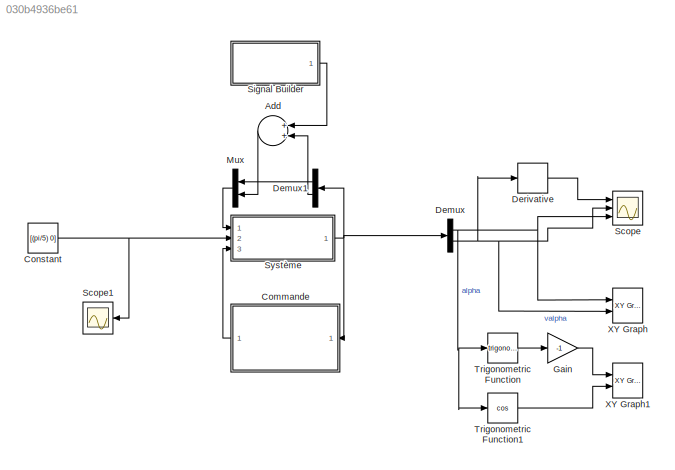
MODEL slx_030b4936be61
KIND model
CONFIG AbsTol = auto
CONFIG FixedStep = 4*pi*sqrt(10/9.81) / 500
CONFIG MaxStep = auto
CONFIG MinStep = auto
CONFIG RelTol = 1e-6
CONFIG SampleTimeConstraint = Unconstrained
CONFIG Solver = FixedStepAuto
CONFIG SolverMode = Auto
CONFIG SolverName = FixedStepAuto
CONFIG StartTime = 0.0
CONFIG StopTime = 4*pi*sqrt(10/9.81)
BLOCK [Sum] Add
  InputSameDT = off
  OutDataTypeStr = Inherit: Inherit via internal rule
  Ports = [2, 1]
  SaturateOnIntegerOverflow = off
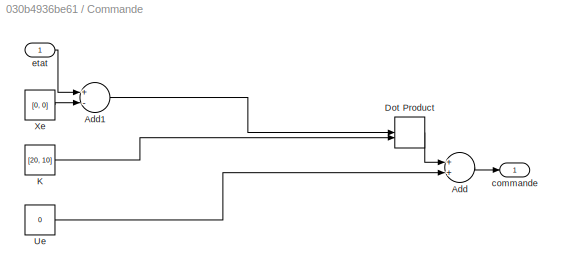
BLOCK [SubSystem] Commande
  Ports = [1, 1]
  RequestExecContextInheritance = off
  Variant = off
BLOCK [Sum] Commande/Add
  InputSameDT = off
  OutDataTypeStr = Inherit: Inherit via internal rule
  Ports = [2, 1]
  SaturateOnIntegerOverflow = off
BLOCK [Sum] Commande/Add1
  InputSameDT = off
  Inputs = +-
  OutDataTypeStr = Inherit: Inherit via internal rule
  Ports = [2, 1]
  SaturateOnIntegerOverflow = off
BLOCK [DotProduct] Commande/Dot Product
  OutDataTypeStr = Inherit: Inherit via internal rule
BLOCK [Constant] Commande/K
  Value = [20, 10]
BLOCK [Constant] Commande/Ue
  Value = 0
BLOCK [Constant] Commande/Xe
  Value = [0, 0]
BLOCK [Outport] Commande/commande
  IconDisplay = Port number
BLOCK [Inport] Commande/etat
  IconDisplay = Port number
BLOCK [Constant] Constant
  Value = [(pi/5) 0]
  VectorParams1D = off
BLOCK [Demux] Demux
  DisplayOption = bar
  Outputs = 2
  Ports = [1, 2]
BLOCK [Demux] Demux1
  DisplayOption = bar
  Outputs = 2
  Ports = [1, 2]
BLOCK [Derivative] Derivative
BLOCK [Gain] Gain
  Gain = -1
  OutDataTypeStr = Inherit: Inherit via internal rule
  ParamDataTypeStr = Inherit: Inherit via internal rule
  SaturateOnIntegerOverflow = off
BLOCK [Mux] Mux
  DisplayOption = bar
  Inputs = 2
  Ports = [2, 1]
BLOCK [Scope] Scope
  NumInputPorts = 3
  Ports = [3]
  ScopeSpecificationString = Simulink.scopes.TimeScopeBlockCfg('CurrentConfiguration', extmgr.ConfigurationSet(extmgr.Configuration('Core','General UI',true),extmgr.Configuration('Core','Source UI',true),extmgr.Configuration('Sources','WiredSimulink',true),extmgr.Configuration('Visuals','Time Domain',true,'SerializedDisplays',{struct('MinYLimReal','-0.51167','MaxYLimReal','0.24967','YLabelReal','','MinYLimMag','0.00000','MaxY...<+2732ch>
BLOCK [Scope] Scope1
  Ports = [1]
  ScopeSpecificationString = Simulink.scopes.TimeScopeBlockCfg('CurrentConfiguration', extmgr.ConfigurationSet(extmgr.Configuration('Core','General UI',true),extmgr.Configuration('Core','Source UI',true),extmgr.Configuration('Sources','WiredSimulink',true,'DataLoggingVariableName','ScopeData1'),extmgr.Configuration('Visuals','Time Domain',true,'SerializedDisplays',{struct('MinYLimReal','-0.07854','MaxYLimReal','0.70686','YLab...<+1411ch>
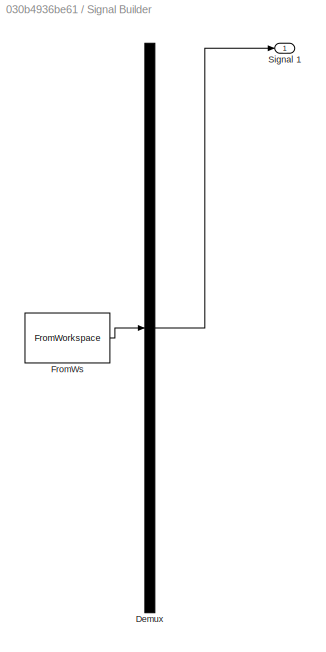
BLOCK [SubSystem] Signal Builder
  ClipboardFcn = sigbuilder_block('clipboard');
  CloseFcn = sigbuilder_block('close');
  ContinueFcn = sigbuilder_block('continue');
  CopyFcn = sigbuilder_block('copy');
  DeleteFcn = sigbuilder_block('delete');
  LoadFcn = sigbuilder_block('load',[437.25 199.5 550.5 399.75 ]);
  MaskHideContents = on
  ModelCloseFcn = sigbuilder_block('modelClose');
  NameChangeFcn = sigbuilder_block('namechange');
  OpenFcn = sigbuilder_block('open',[437.25 199.5 550.5 399.75 ]);
  PauseFcn = sigbuilder_block('pause');
  Ports = [0, 1]
  PreSaveFcn = sigbuilder_block('preSave');
  RequestExecContextInheritance = off
  StartFcn = sigbuilder_block('start');
  StopFcn = sigbuilder_block('stop');
  Tag = STV Subsys
  Variant = off
BLOCK [Demux] Signal Builder/Demux
  Outputs = 1
  Ports = [1, 1]
  Tag = STV Demux
BLOCK [FromWorkspace] Signal Builder/FromWs
  SampleTime = 0
  Tag = STV FromWs
  VariableName = tuvar
  ZeroCross = on
BLOCK [Outport] Signal Builder/Signal 1
  IconDisplay = Port number
  Tag = STV Outport
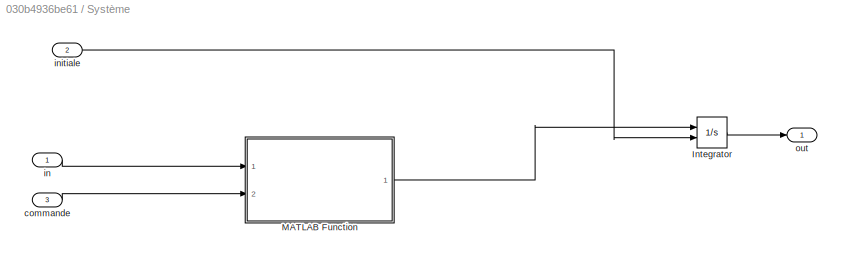
BLOCK [SubSystem] Système
  Ports = [3, 1]
  RequestExecContextInheritance = off
  Variant = off
BLOCK [Integrator] Système/Integrator
  InitialConditionSource = external
  Ports = [2, 1]
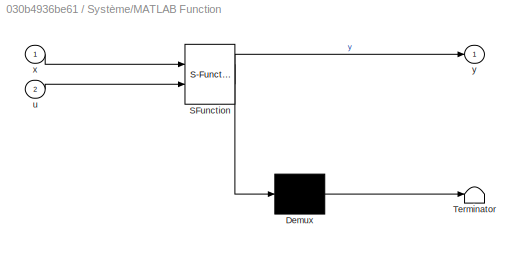
BLOCK [SubSystem] Système/MATLAB Function
  ErrorFcn = Stateflow.Translate.translate
  PermitHierarchicalResolution = ExplicitOnly
  Ports = [2, 1]
  RTWSystemCode = Inline
  RequestExecContextInheritance = off
  SFBlockType = MATLAB Function
  TreatAsAtomicUnit = on
  Variant = off
BLOCK [Demux] Système/MATLAB Function/ Demux 
  Outputs = 1
  Ports = [1, 1]
BLOCK [S-Function] Système/MATLAB Function/ SFunction 
  EnableBusSupport = on
  FunctionName = sf_sfun
  PortCounts = [2 2]
  Ports = [2, 2]
  SFunctionDeploymentMode = off
  Tag = Stateflow S-Function TP3 2
BLOCK [Terminator] Système/MATLAB Function/ Terminator 
BLOCK [Inport] Système/MATLAB Function/u
  IconDisplay = Port number
  Port = 2
BLOCK [Inport] Système/MATLAB Function/x
  IconDisplay = Port number
BLOCK [Outport] Système/MATLAB Function/y
  IconDisplay = Port number
BLOCK [Inport] Système/commande
  IconDisplay = Port number
  Port = 3
BLOCK [Inport] Système/in
  IconDisplay = Port number
BLOCK [Inport] Système/initiale
  IconDisplay = Port number
  Port = 2
BLOCK [Outport] Système/out
  IconDisplay = Port number
BLOCK [Trigonometry] Trigonometric Function
  Ports = [1, 1]
BLOCK [Trigonometry] Trigonometric Function1
  Operator = cos
  Ports = [1, 1]
BLOCK [Reference] XY Graph  REF=simulink/Sinks/XY Graph
  Ports = [2]
  SourceBlock = simulink/Sinks/XY Graph
  SourceType = XY scope.
BLOCK [Reference] XY Graph1  REF=simulink/Sinks/XY Graph
  Ports = [2]
  SourceBlock = simulink/Sinks/XY Graph
  SourceType = XY scope.
LINE Add:1 -> Mux:2
LINE Commande/Add1:1 -> Commande/Dot Product:1
LINE Commande/Add:1 -> Commande/commande:1
LINE Commande/Dot Product:1 -> Commande/Add:1
LINE Commande/K:1 -> Commande/Dot Product:2
LINE Commande/Ue:1 -> Commande/Add:2
LINE Commande/Xe:1 -> Commande/Add1:2
LINE Commande/etat:1 -> Commande/Add1:1
LINE Commande:1 -> Système:3
NET Constant:1 -> Scope1:1, Système:2
LINE Demux1:1 -> Mux:1
LINE Demux1:2 -> Add:2
NET Demux:1 -> Scope:3, Trigonometric Function1:1, Trigonometric Function:1, XY Graph:1
NET Demux:2 -> Derivative:1, Scope:2, XY Graph:2
LINE Derivative:1 -> Scope:1
LINE Gain:1 -> XY Graph1:1
LINE Mux:1 -> Système:1
LINE Signal Builder:1 -> Add:1
LINE Système/Integrator:1 -> Système/out:1
LINE Système/MATLAB Function:1 -> Système/Integrator:1
LINE Système/commande:1 -> Système/MATLAB Function:2
LINE Système/in:1 -> Système/MATLAB Function:1
LINE Système/initiale:1 -> Système/Integrator:2
NET Système:1 -> Commande:1, Demux1:1, Demux:1
LINE Trigonometric Function1:1 -> XY Graph1:2
LINE Trigonometric Function:1 -> Gain:1
note: NET lines group one-source signal fan-out (src -> all destinations, sorted); 1:1 wires keep LINE
CHART Système/MATLAB Function states=1 transitions=1
  STATE_LABEL 'eML_blk_kernel()'
  STATE_LABEL 'SCRIPT:\nfunction y = fcn(x,u)\n\n%% Constantes\n    g = 9.81;\n    l = 10;\n\n%% Calcul\n    y = [ x(2) ; ((g*sin(x(1))/l) - (u * cos(x(1))/l)) ]; '
